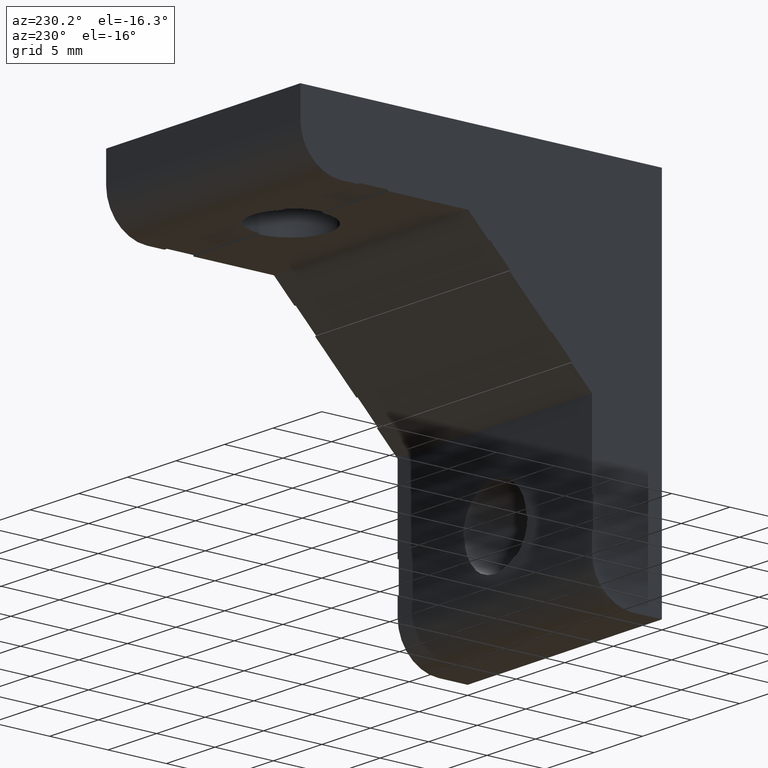
[diagram: clean part render]
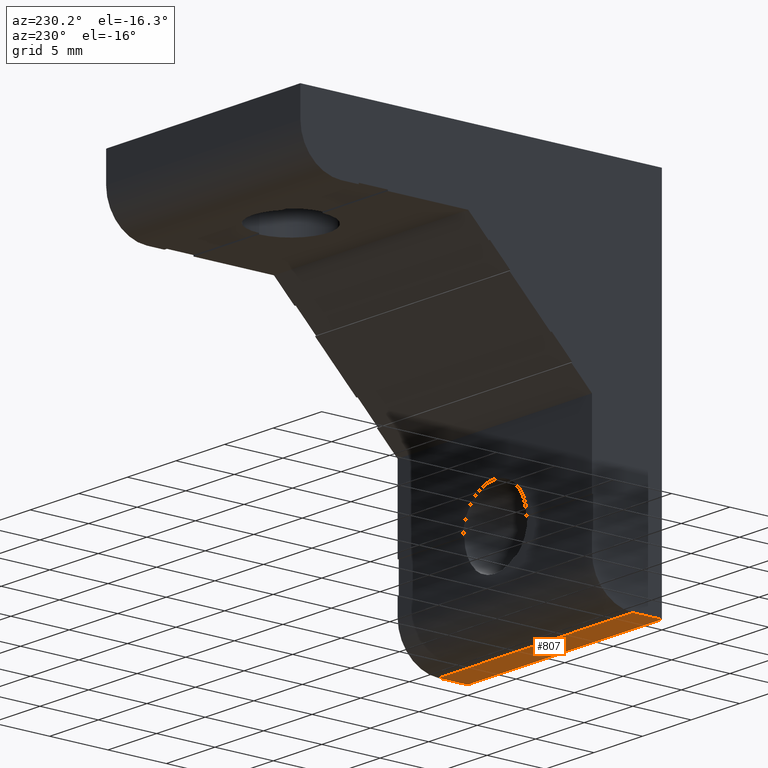
[diagram: same view with one face highlighted and labeled with its STEP entity id]
A machine part, auxiliary view. The second image highlights one B-rep face of the part: STEP entity #807.
In plain terms, the highlighted planar face has unit normal (0, 0, 1).
Its self-contained STEP definition (entity closure, byte-faithful):
#165 = FACE_OUTER_BOUND ( 'NONE', #1173, .T. ) ;
#216 = LINE ( 'NONE', #590, #217 ) ;
#217 = VECTOR ( 'NONE', #591, 1000.000000000000000 ) ;
#218 = LINE ( 'NONE', #592, #219 ) ;
#219 = VECTOR ( 'NONE', #593, 1000.000000000000000 ) ;
#220 = LINE ( 'NONE', #594, #221 ) ;
#221 = VECTOR ( 'NONE', #595, 1000.000000000000000 ) ;
#223 = LINE ( 'NONE', #602, #225 ) ;
#225 = VECTOR ( 'NONE', #603, 1000.000000000000000 ) ;
#262 = EDGE_CURVE ( 'NONE', #1051, #1049, #216, .T. ) ;
#263 = EDGE_CURVE ( 'NONE', #1050, #1049, #218, .T. ) ;
#264 = EDGE_CURVE ( 'NONE', #1052, #1050, #220, .T. ) ;
#267 = EDGE_CURVE ( 'NONE', #1052, #1051, #223, .T. ) ;
#312 = AXIS2_PLACEMENT_3D ( 'NONE', #411, #412, #413 ) ;
#411 = CARTESIAN_POINT ( 'NONE',  ( 0.0000000000000000000, 0.0000000000000000000, -31.00000000000000000 ) ) ;
#412 = DIRECTION ( 'NONE',  ( 0.0000000000000000000, 0.0000000000000000000, 1.000000000000000000 ) ) ;
#413 = DIRECTION ( 'NONE',  ( 1.000000000000000000, 0.0000000000000000000, 0.0000000000000000000 ) ) ;
#559 = CARTESIAN_POINT ( 'NONE',  ( 0.0000000000000000000, 0.0000000000000000000, -31.00000000000000000 ) ) ;
#560 = CARTESIAN_POINT ( 'NONE',  ( 20.00000000000000000, 0.0000000000000000000, -31.00000000000000000 ) ) ;
#561 = CARTESIAN_POINT ( 'NONE',  ( 1.734723475976807100E-015, 2.499999999999995100, -31.00000000000000000 ) ) ;
#562 = CARTESIAN_POINT ( 'NONE',  ( 20.00000000000000000, 2.500000000000000400, -31.00000000000000000 ) ) ;
#590 = CARTESIAN_POINT ( 'NONE',  ( 0.0000000000000000000, 15.50000000000000000, -31.00000000000000000 ) ) ;
#591 = DIRECTION ( 'NONE',  ( -0.0000000000000000000, -1.000000000000000000, -0.0000000000000000000 ) ) ;
#592 = CARTESIAN_POINT ( 'NONE',  ( 10.00000000000000000, 0.0000000000000000000, -31.00000000000000000 ) ) ;
#593 = DIRECTION ( 'NONE',  ( -1.000000000000000000, -0.0000000000000000000, -0.0000000000000000000 ) ) ;
#594 = CARTESIAN_POINT ( 'NONE',  ( 20.00000000000000000, 15.50000000000000000, -31.00000000000000000 ) ) ;
#595 = DIRECTION ( 'NONE',  ( -0.0000000000000000000, -1.000000000000000000, -0.0000000000000000000 ) ) ;
#602 = CARTESIAN_POINT ( 'NONE',  ( 10.00000000000000000, 2.500000000000000000, -31.00000000000000000 ) ) ;
#603 = DIRECTION ( 'NONE',  ( -1.000000000000000000, -0.0000000000000000000, -0.0000000000000000000 ) ) ;
#724 = PLANE ( 'NONE',  #312 ) ;
#807 = ADVANCED_FACE ( 'NONE', ( #165 ), #724, .F. ) ;
#950 = ORIENTED_EDGE ( 'NONE', *, *, #262, .F. ) ;
#951 = ORIENTED_EDGE ( 'NONE', *, *, #263, .T. ) ;
#952 = ORIENTED_EDGE ( 'NONE', *, *, #264, .T. ) ;
#953 = ORIENTED_EDGE ( 'NONE', *, *, #267, .F. ) ;
#1049 = VERTEX_POINT ( 'NONE', #559 ) ;
#1050 = VERTEX_POINT ( 'NONE', #560 ) ;
#1051 = VERTEX_POINT ( 'NONE', #561 ) ;
#1052 = VERTEX_POINT ( 'NONE', #562 ) ;
#1173 = EDGE_LOOP ( 'NONE', ( #953, #952, #951, #950 ) ) ;